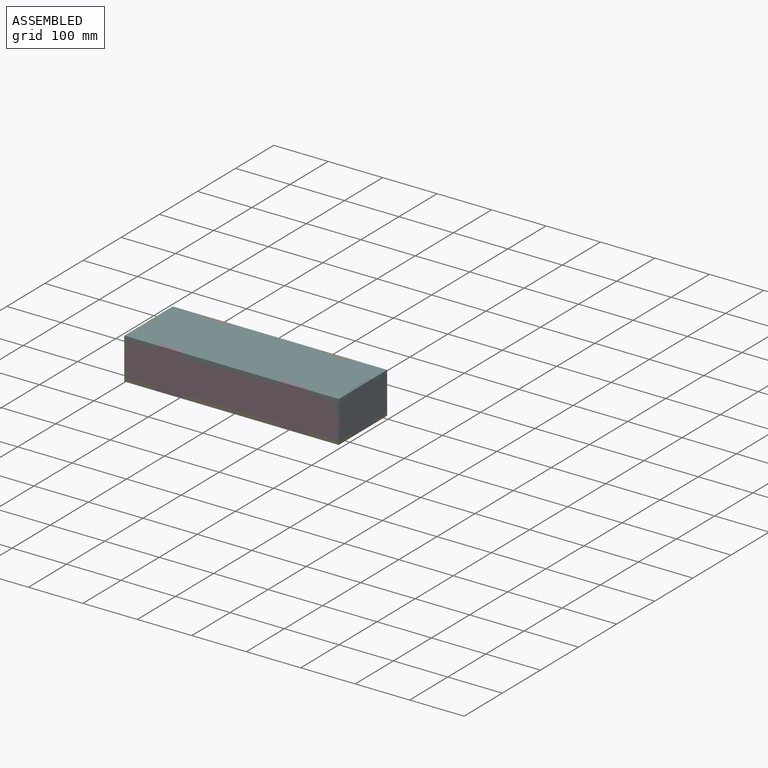
[diagram: assembled view]
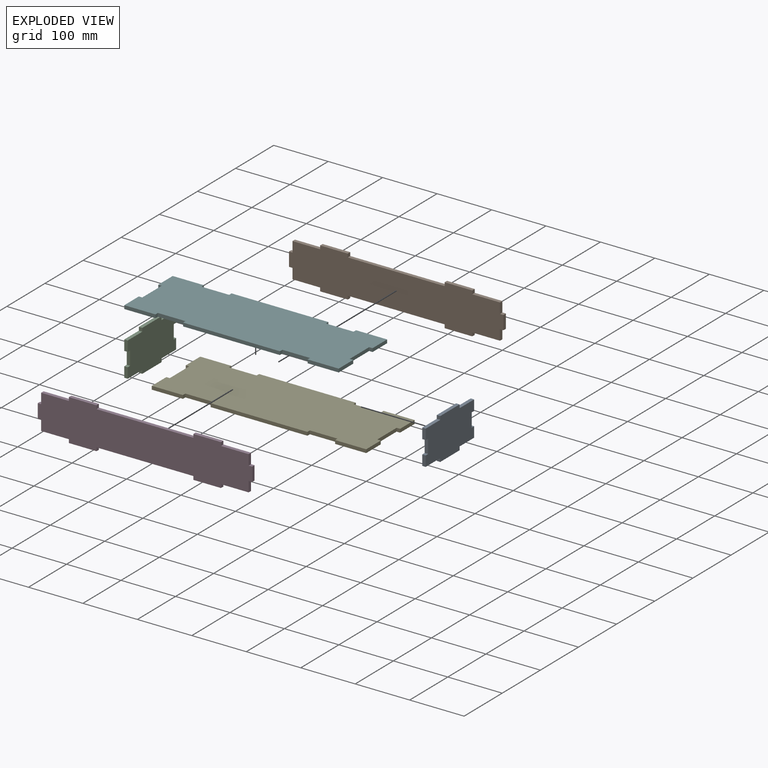
[diagram: exploded view]
GUIDED TOUR — MATED ASSEMBLY (Onshape document 3c04d9b775d5348b2d6336af, AutoMate assembly 3c04d9b775d5348b2d6336af_7605436bc6f01bbf44d855f0_5e979da21f08c909bbdc48e7_default)

This assembly has 6 components, labeled P0..P5 below (a component is one placed occurrence of a part; the same part can appear more than once), held together by 4 mates. A mate is a constraint between two components; its type names the relative motion it leaves free:
  FASTENED — locks the two components together rigidly (no relative motion).
Axis/direction vectors are unit vectors and 'through' points are millimeter coordinates, both in the assembly's world frame.

MATES
  1. FASTENED "Fastened 4": P0 <-> P5, direction (1.000, 0.000, 0.000) through (199.70, 109.34, 80.55) mm
  2. FASTENED "Fastened 1": P2 <-> P5, direction (-1.000, 0.000, 0.000) through (-194.00, 160.14, 80.55) mm
  3. FASTENED "Fastened 2": P1 <-> P5, direction (0.000, 1.000, 0.000) through (91.75, 198.24, 80.55) mm
  4. FASTENED "Fastened 3": P3 <-> P5, direction (0.000, -1.000, 0.000) through (-136.85, 71.24, 80.55) mm

ASSEMBLY ORDER
  1. P2 — the base component [order verified]
  2. P5 [order verified]
  3. P4 [order verified]
  4. P3 [order verified]
  5. P1 [order verified]
  6. P0 [order verified]
Order-tag legend:
  [order verified] — this step's position reverses a verified removal order: the component was checked to insert without passing through the ones already placed.

Of the 6 components, 2 carry the full construction recipe — the FeatureScript program that regenerates the part's solid from scratch; the rest are supplied as boundary geometry only.
Each toured component is shown spotlighted twice — in the assembled view, then in the exploded view, where a leader line traces a displaced component back to its assembled socket (saturated green if recipe-attached, orange if geometry-only; every other component desaturated gray) — followed by its recipe or geometry summary and the mates that hold it.
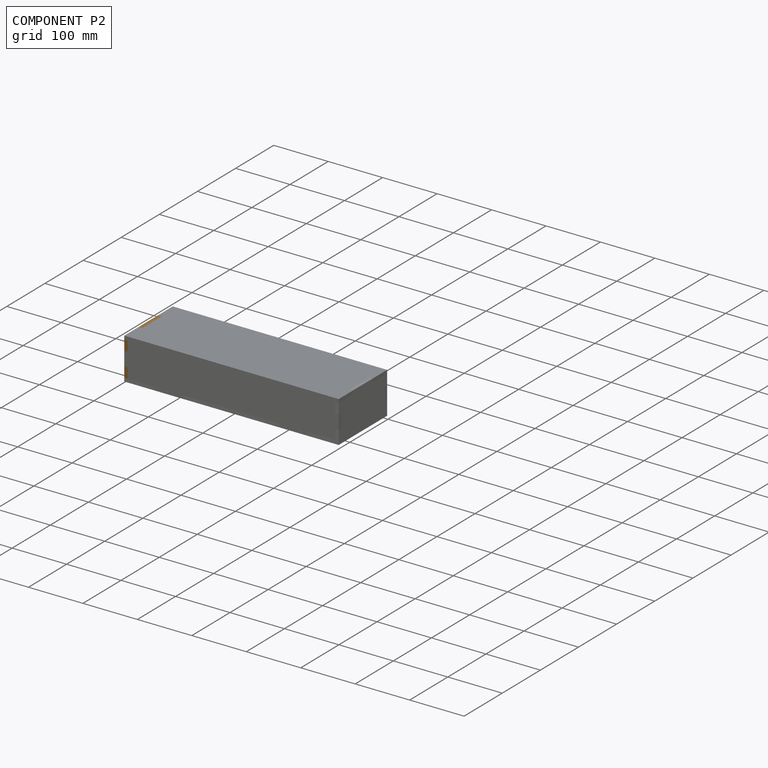
[diagram: component P2 — assembled]
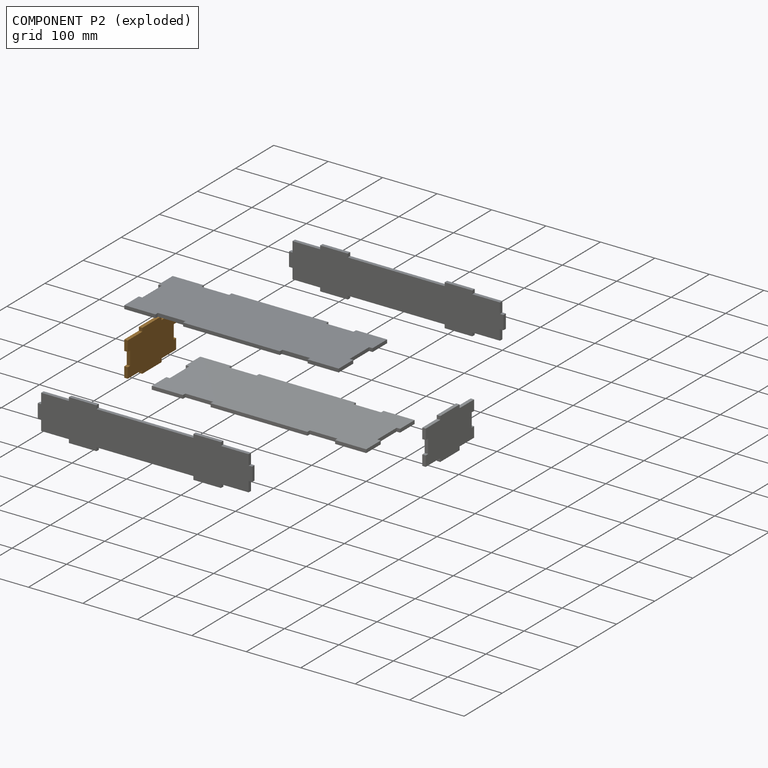
[diagram: component P2 — exploded]
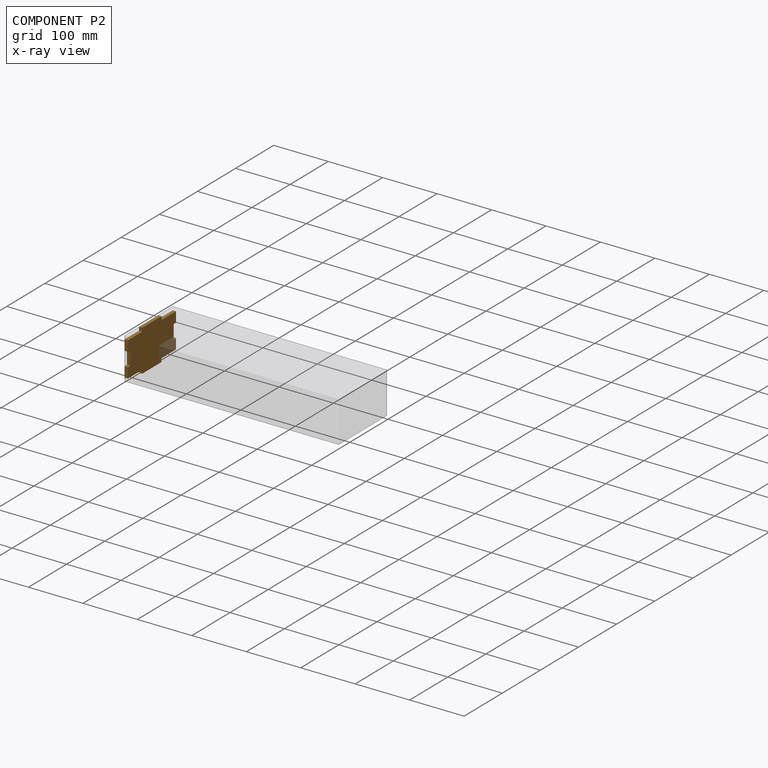
[diagram: component P2 — x-ray view]
COMPONENT P2 — geometry summary (no construction recipe available for this part):
  bounding box: 127.0 x 76.2 x 6.4 mm
  B-rep topology: 1 solid, 22 faces, 120 edges
  volume: 53258 mm^3 (87% of its bounding box)
  symmetry: 2-fold rotationally symmetric about the x axis; 2-fold rotationally symmetric about the y axis; 2-fold rotationally symmetric about the z axis; mirror-symmetric across its x mid-plane, y mid-plane, z mid-plane
Held by: FASTENED mate "Fastened 1" to P5.
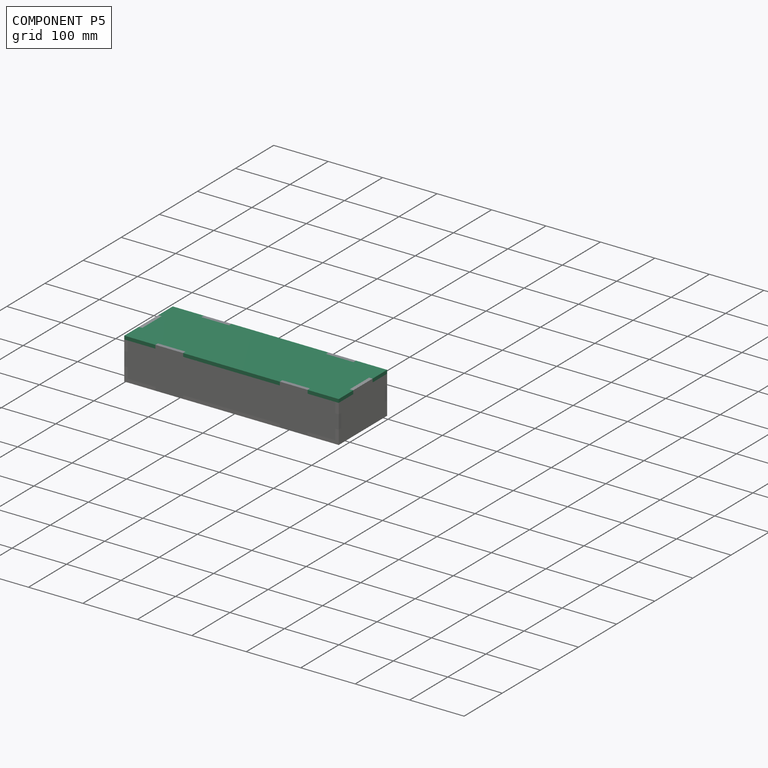
[diagram: component P5 — assembled]
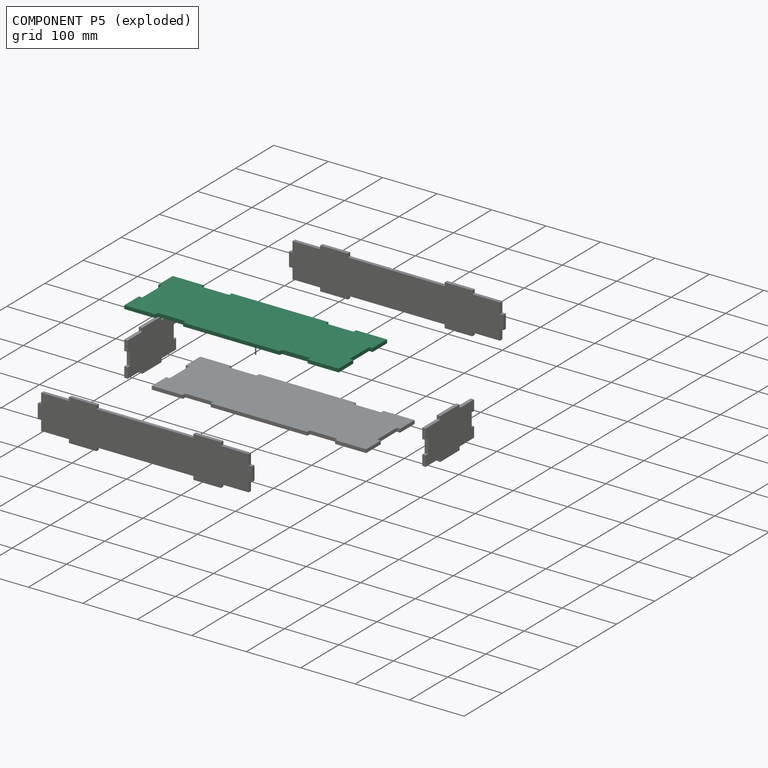
[diagram: component P5 — exploded]
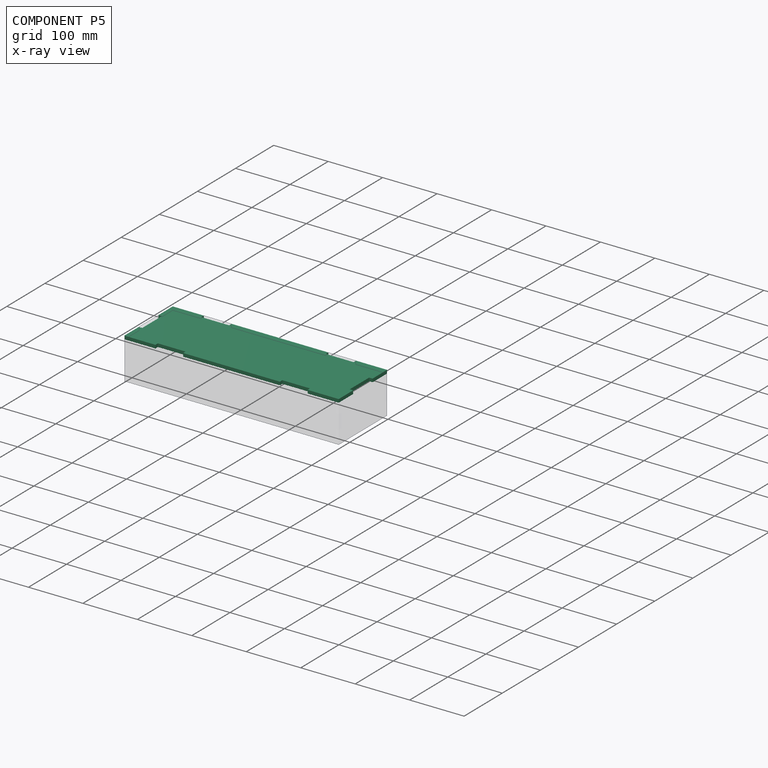
[diagram: component P5 — x-ray view]
COMPONENT P5 — same part as P4 (CADFS 00643480); its construction recipe is shown at P4.
Held by: FASTENED mate "Fastened 4" to P0; FASTENED mate "Fastened 1" to P2; FASTENED mate "Fastened 2" to P1; FASTENED mate "Fastened 3" to P3.
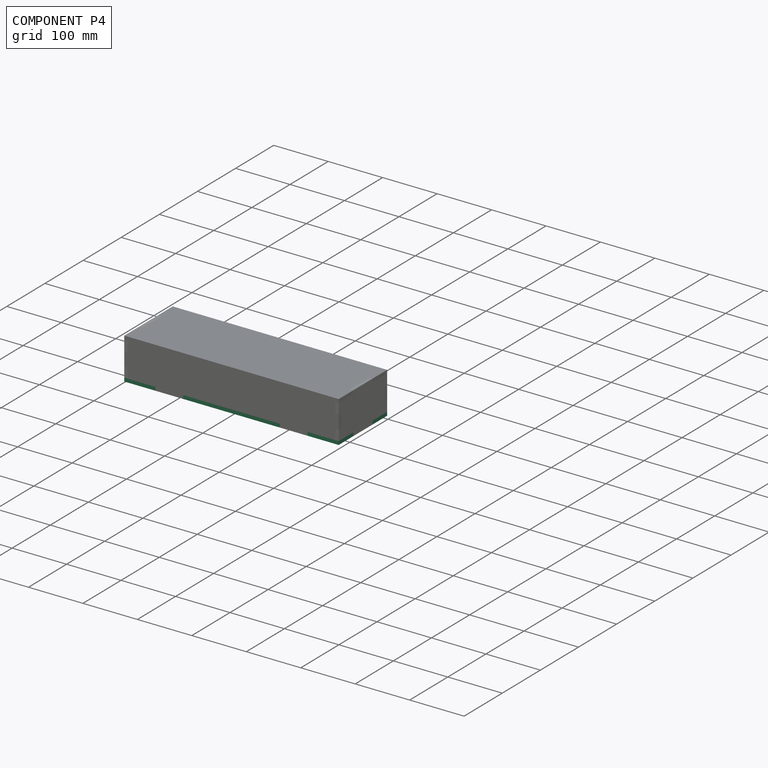
[diagram: component P4 — assembled]
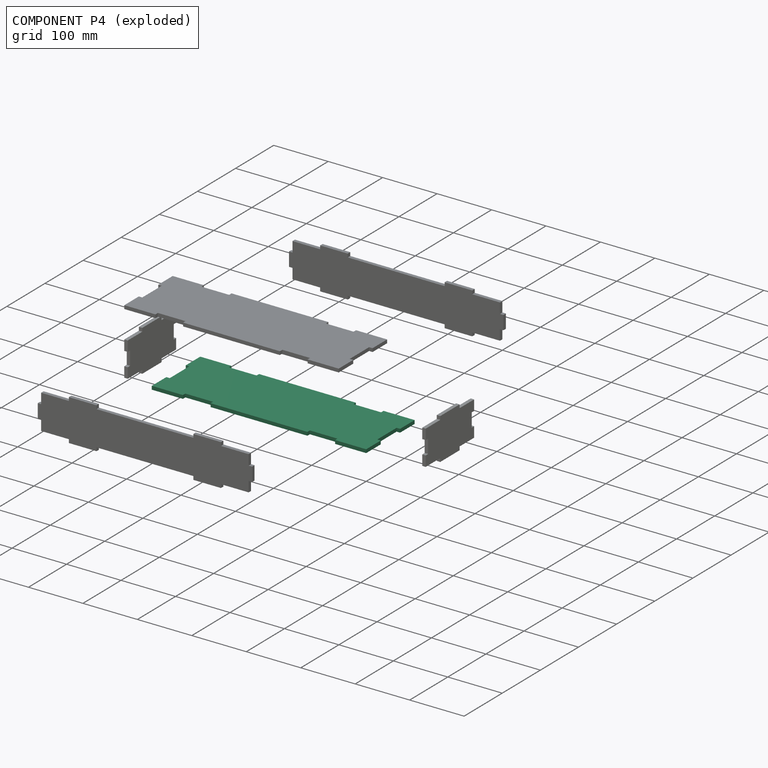
[diagram: component P4 — exploded]
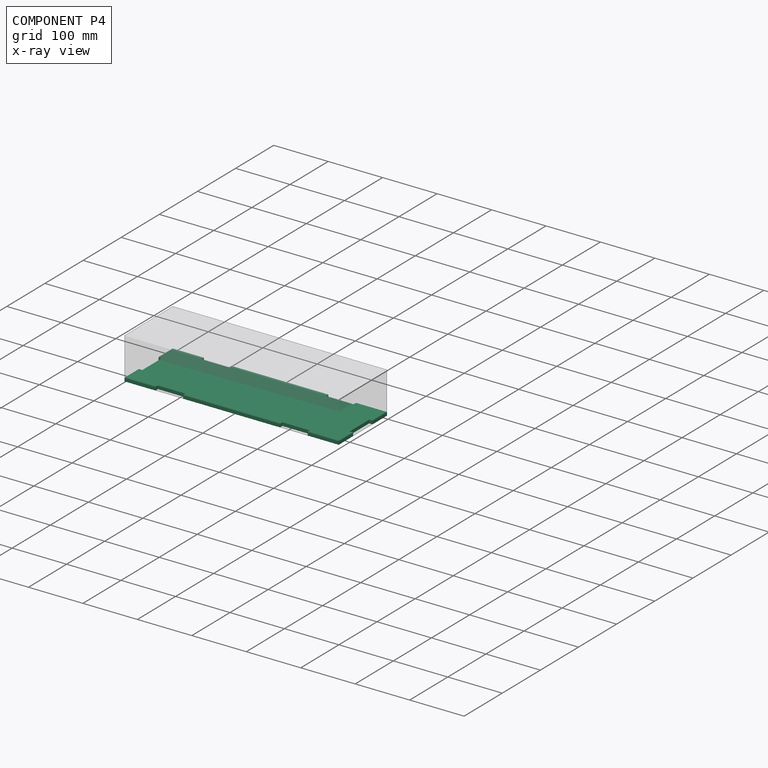
[diagram: component P4 — x-ray view]
COMPONENT P4 — recipe-attached (CADFS 00643480, mesh-verified: the recipe's output STEP matches this component's geometry to below the mesh-comparison resolution (tessellation chordal tolerance ~0.621 mm)).
Held by: no mates (free).
Construction recipe (FeatureScript — the CAD program that rebuilds this solid; sketch coordinates are in the units given by the * unit suffixes, e.g. mm):

FeatureScript 1511;
import(path : "onshape/std/geometry.fs", version : "1511.0");
import(path : "onshape/std/common.fs", version : "1511.0");
const mm = millimeter;
const VERTEX = EntityType.VERTEX;
const EDGE = EntityType.EDGE;
const FACE = EntityType.FACE;
const BODY = EntityType.BODY;
function v(x, y){return vector(x, y);}
function OD(order){return orderDisambiguation(order);}
function OSD(set){return originalSetDisambiguation(set);}
function TD(topology){return topologyDisambiguation(topology);}
function TDD(query){return trueDependencyDisambiguation(query);}
function sQuery(a, b, c) {return sketchEntityQuery(a, b, c);}

annotation { "Feature Type Name" : "Feature", "Feature Type Description" : "" }
export const myFeature = defineFeature(function(context is Context, id is Id, definition is map)
    precondition{}
    {
        {
            var Q0;
            Q0=qCreatedBy(makeId("Top.planeOp"),FACE);
            var sketch = newSketch(context, id + "F0", { "sketchPlane" : qUnion([Q0])});
            skLineSegment(sketch, "E0.bottom", {"start": v(-176.11, 62.4) * mm, "end": v(204.89, 62.4) * mm});
            skLineSegment(sketch, "E0.top", {"start": v(-176.11, -64.6) * mm, "end": v(204.89, -64.6) * mm});
            skLineSegment(sketch, "E0.left", {"start": v(-176.11, 62.4) * mm, "end": v(-176.11, -64.6) * mm});
            skLineSegment(sketch, "E0.right", {"start": v(204.89, 62.4) * mm, "end": v(204.89, -64.6) * mm});
            skLineSegment(sketch, "E1.bottom", {"start": v(-125.31, 62.4) * mm, "end": v(-74.51, 62.4) * mm});
            skLineSegment(sketch, "E1.top", {"start": v(-125.31, 56.05) * mm, "end": v(-74.51, 56.05) * mm});
            skLineSegment(sketch, "E1.left", {"start": v(-125.31, 62.4) * mm, "end": v(-125.31, 56.05) * mm});
            skLineSegment(sketch, "E1.right", {"start": v(-74.51, 62.4) * mm, "end": v(-74.51, 56.05) * mm});
            skLineSegment(sketch, "E2.bottom", {"start": v(103.29, 62.4) * mm, "end": v(154.09, 62.4) * mm});
            skLineSegment(sketch, "E2.top", {"start": v(103.29, 56.05) * mm, "end": v(154.09, 56.05) * mm});
            skLineSegment(sketch, "E2.left", {"start": v(103.29, 62.4) * mm, "end": v(103.29, 56.05) * mm});
            skLineSegment(sketch, "E2.right", {"start": v(154.09, 62.4) * mm, "end": v(154.09, 56.05) * mm});
            skLineSegment(sketch, "E3.bottom", {"start": v(-125.31, -64.6) * mm, "end": v(-74.51, -64.6) * mm});
            skLineSegment(sketch, "E3.top", {"start": v(-125.31, -58.25) * mm, "end": v(-74.51, -58.25) * mm});
            skLineSegment(sketch, "E3.left", {"start": v(-125.31, -64.6) * mm, "end": v(-125.31, -58.25) * mm});
            skLineSegment(sketch, "E3.right", {"start": v(-74.51, -64.6) * mm, "end": v(-74.51, -58.25) * mm});
            skLineSegment(sketch, "E4.bottom", {"start": v(103.29, -64.6) * mm, "end": v(154.09, -64.6) * mm});
            skLineSegment(sketch, "E4.top", {"start": v(103.29, -58.25) * mm, "end": v(154.09, -58.25) * mm});
            skLineSegment(sketch, "E4.left", {"start": v(103.29, -64.6) * mm, "end": v(103.29, -58.25) * mm});
            skLineSegment(sketch, "E4.right", {"start": v(154.09, -64.6) * mm, "end": v(154.09, -58.25) * mm});
            skLineSegment(sketch, "E5.bottom", {"start": v(204.89, 62.4) * mm, "end": v(211.24, 62.4) * mm});
            skLineSegment(sketch, "E5.top", {"start": v(204.89, 24.3) * mm, "end": v(211.24, 24.3) * mm});
            skLineSegment(sketch, "E5.left", {"start": v(204.89, 62.4) * mm, "end": v(204.89, 24.3) * mm});
            skLineSegment(sketch, "E5.right", {"start": v(211.24, 62.4) * mm, "end": v(211.24, 24.3) * mm});
            skLineSegment(sketch, "E6.bottom", {"start": v(204.89, -64.6) * mm, "end": v(211.24, -64.6) * mm});
            skLineSegment(sketch, "E6.top", {"start": v(204.89, -26.5) * mm, "end": v(211.24, -26.5) * mm});
            skLineSegment(sketch, "E6.left", {"start": v(204.89, -64.6) * mm, "end": v(204.89, -26.5) * mm});
            skLineSegment(sketch, "E6.right", {"start": v(211.24, -64.6) * mm, "end": v(211.24, -26.5) * mm});
            skLineSegment(sketch, "E7.bottom", {"start": v(-176.11, 62.4) * mm, "end": v(-182.46, 62.4) * mm});
            skLineSegment(sketch, "E7.top", {"start": v(-176.11, 24.3) * mm, "end": v(-182.46, 24.3) * mm});
            skLineSegment(sketch, "E7.left", {"start": v(-176.11, 62.4) * mm, "end": v(-176.11, 24.3) * mm});
            skLineSegment(sketch, "E7.right", {"start": v(-182.46, 62.4) * mm, "end": v(-182.46, 24.3) * mm});
            skLineSegment(sketch, "E8.bottom", {"start": v(-176.11, -64.6) * mm, "end": v(-182.46, -64.6) * mm});
            skLineSegment(sketch, "E8.top", {"start": v(-176.11, -26.5) * mm, "end": v(-182.46, -26.5) * mm});
            skLineSegment(sketch, "E8.left", {"start": v(-176.11, -64.6) * mm, "end": v(-176.11, -26.5) * mm});
            skLineSegment(sketch, "E8.right", {"start": v(-182.46, -64.6) * mm, "end": v(-182.46, -26.5) * mm});
            skSolve(sketch);
        }
        {
            var Q0;
            Q0=makeQuery(id+"F0.imprint","IMPRINT",FACE,{"disambiguationData":[TD([[makeQuery(id+"F0.imprint","IMPRINT",EDGE,{"derivedFrom":sQuery(id+"F0.wireOp",EDGE,"E0.bottom")}),-1.0]])]});
            var Q1;
            Q1=makeQuery(id+"F0.imprint","IMPRINT",FACE,{"disambiguationData":[TD([[makeQuery(id+"F0.imprint","IMPRINT",EDGE,{"derivedFrom":sQuery(id+"F0.wireOp",EDGE,"E7.bottom")}),1.0]])]});
            var Q2;
            Q2=makeQuery(id+"F0.imprint","IMPRINT",FACE,{"disambiguationData":[TD([[makeQuery(id+"F0.imprint","IMPRINT",EDGE,{"derivedFrom":sQuery(id+"F0.wireOp",EDGE,"E8.bottom")}),-1.0]])]});
            var Q3;
            Q3=makeQuery(id+"F0.imprint","IMPRINT",FACE,{"disambiguationData":[TD([[makeQuery(id+"F0.imprint","IMPRINT",EDGE,{"derivedFrom":sQuery(id+"F0.wireOp",EDGE,"E5.bottom")}),-1.0]])]});
            var Q4;
            Q4=makeQuery(id+"F0.imprint","IMPRINT",FACE,{"disambiguationData":[TD([[makeQuery(id+"F0.imprint","IMPRINT",EDGE,{"derivedFrom":sQuery(id+"F0.wireOp",EDGE,"E6.bottom")}),1.0]])]});
            extrude(context, id + "F1", {"entities" : qUnion([Q0, Q1, Q2, Q3, Q4]), "depth" : 6.35 * mm, "offsetDistance" : 25.4 * mm});
        }
    });
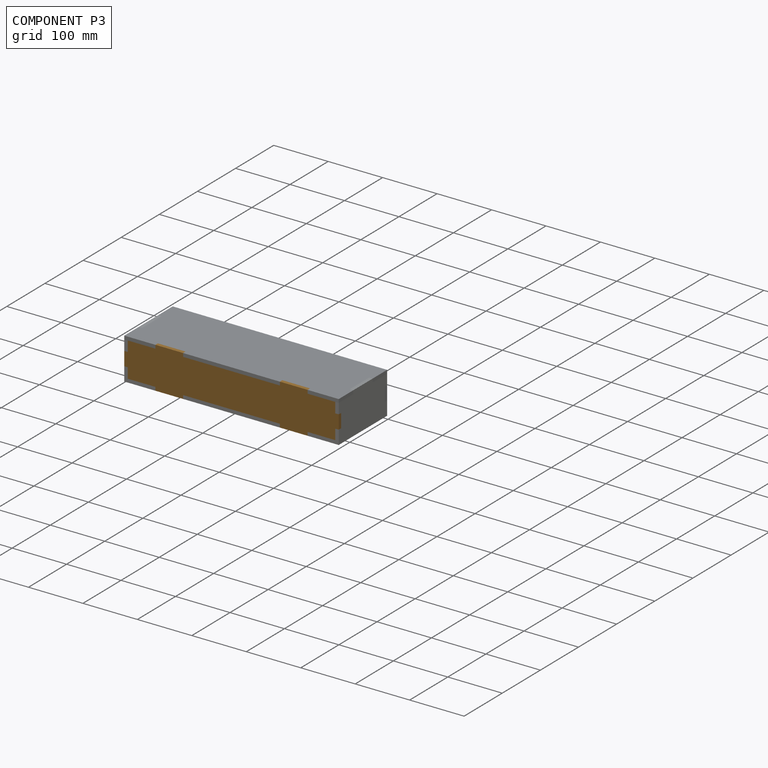
[diagram: component P3 — assembled]
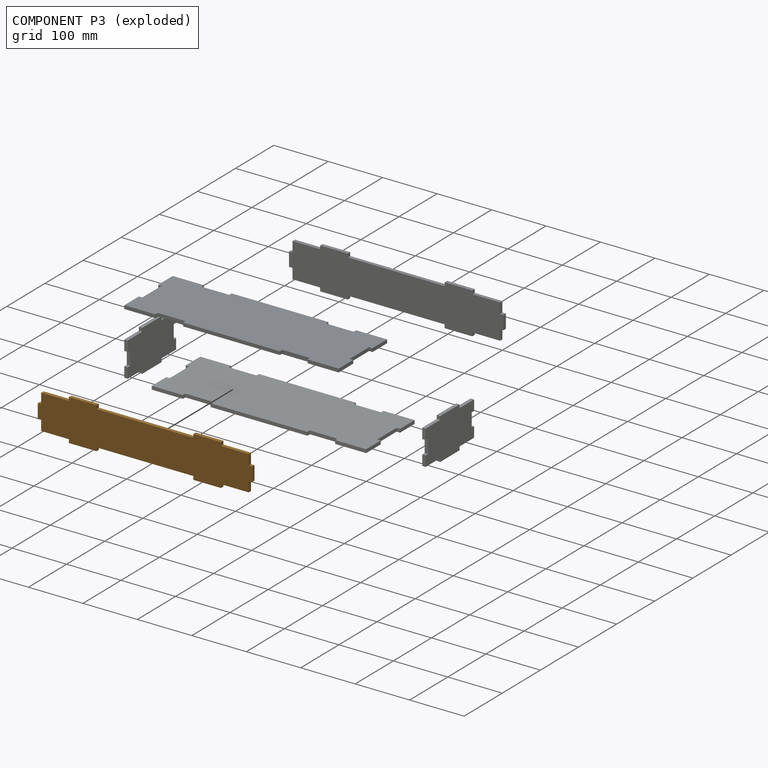
[diagram: component P3 — exploded]
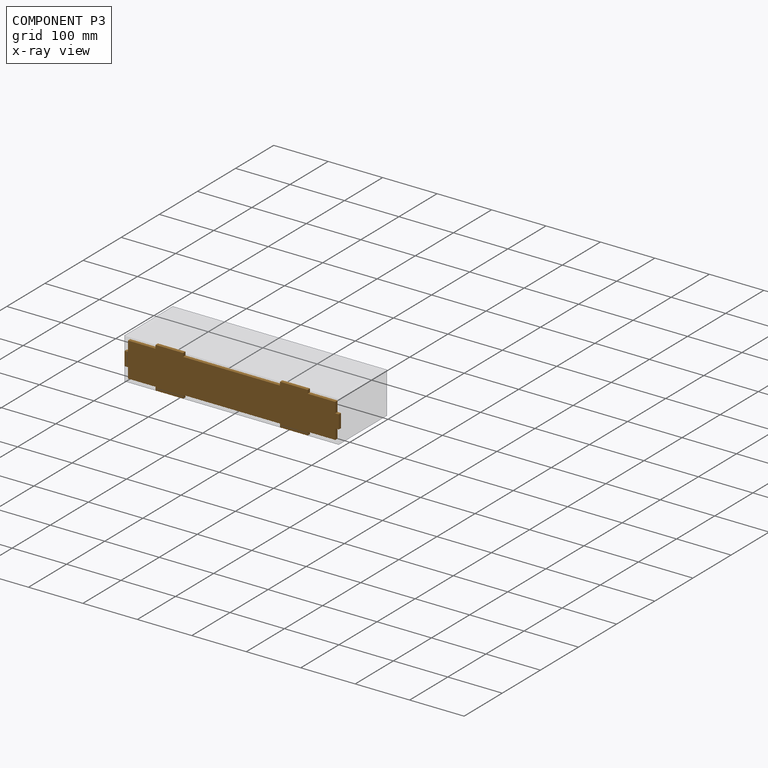
[diagram: component P3 — x-ray view]
COMPONENT P3 — geometry summary (no construction recipe available for this part):
  bounding box: 393.7 x 76.2 x 6.4 mm
  B-rep topology: 1 solid, 30 faces, 168 edges
  volume: 163871 mm^3 (86% of its bounding box)
  symmetry: 2-fold rotationally symmetric about the x axis; 2-fold rotationally symmetric about the y axis; 2-fold rotationally symmetric about the z axis; mirror-symmetric across its x mid-plane, y mid-plane, z mid-plane
Held by: FASTENED mate "Fastened 3" to P5.
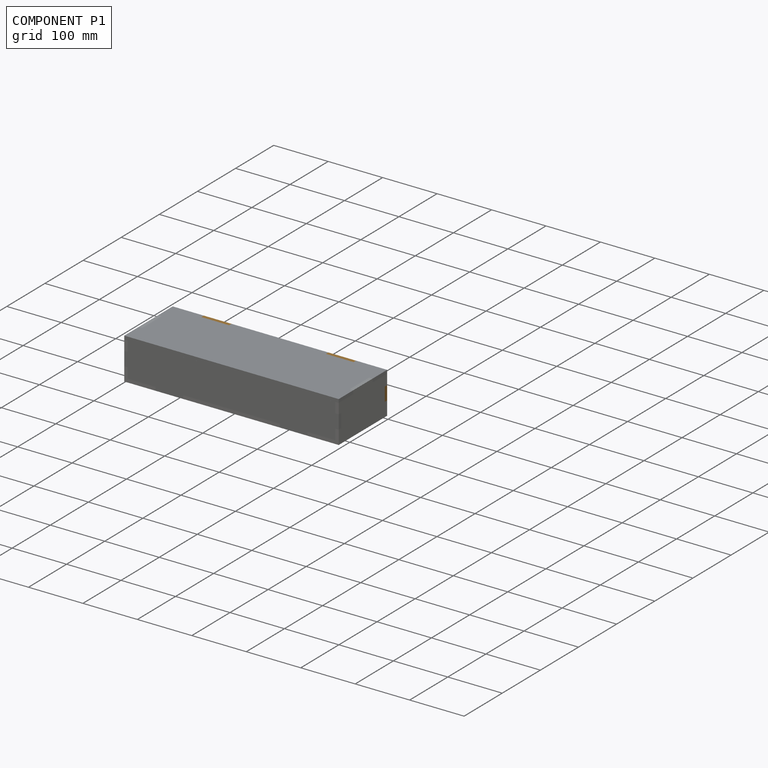
[diagram: component P1 — assembled]
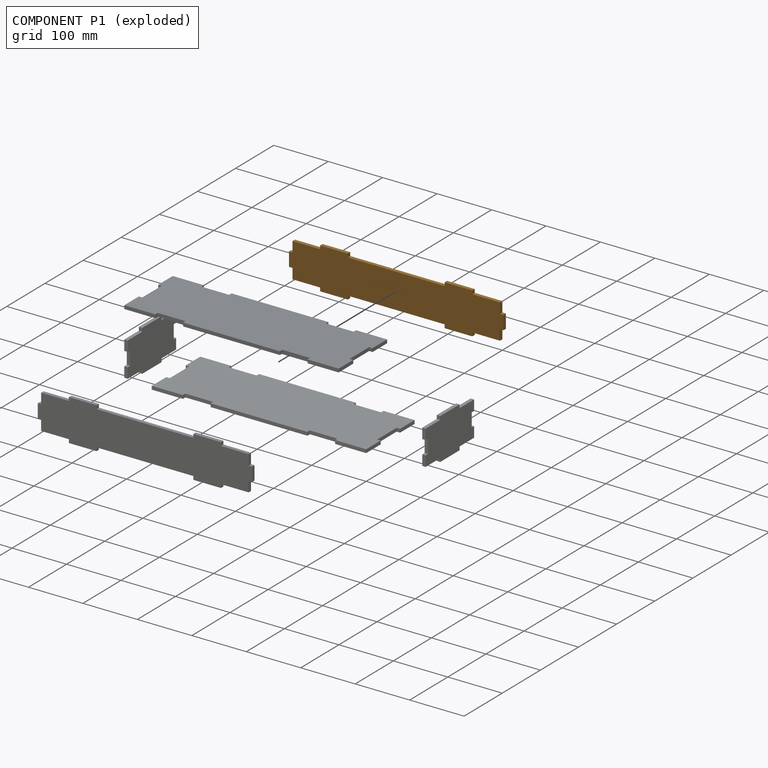
[diagram: component P1 — exploded]
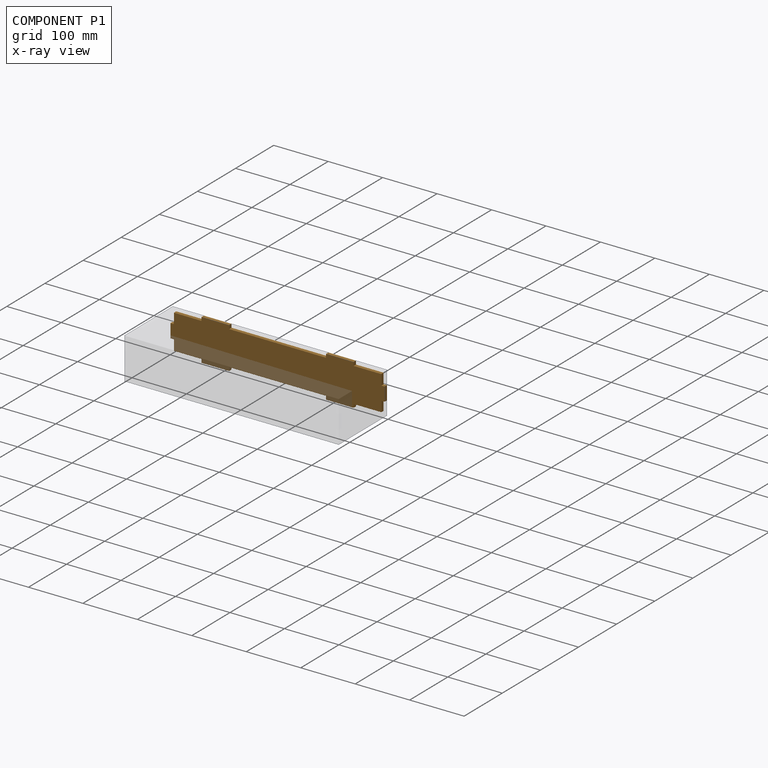
[diagram: component P1 — x-ray view]
COMPONENT P1 — geometry summary (no construction recipe available for this part):
  bounding box: 393.7 x 76.2 x 6.4 mm
  B-rep topology: 1 solid, 30 faces, 168 edges
  volume: 163871 mm^3 (86% of its bounding box)
  symmetry: 2-fold rotationally symmetric about the x axis; 2-fold rotationally symmetric about the y axis; 2-fold rotationally symmetric about the z axis; mirror-symmetric across its x mid-plane, y mid-plane, z mid-plane
Held by: FASTENED mate "Fastened 2" to P5.
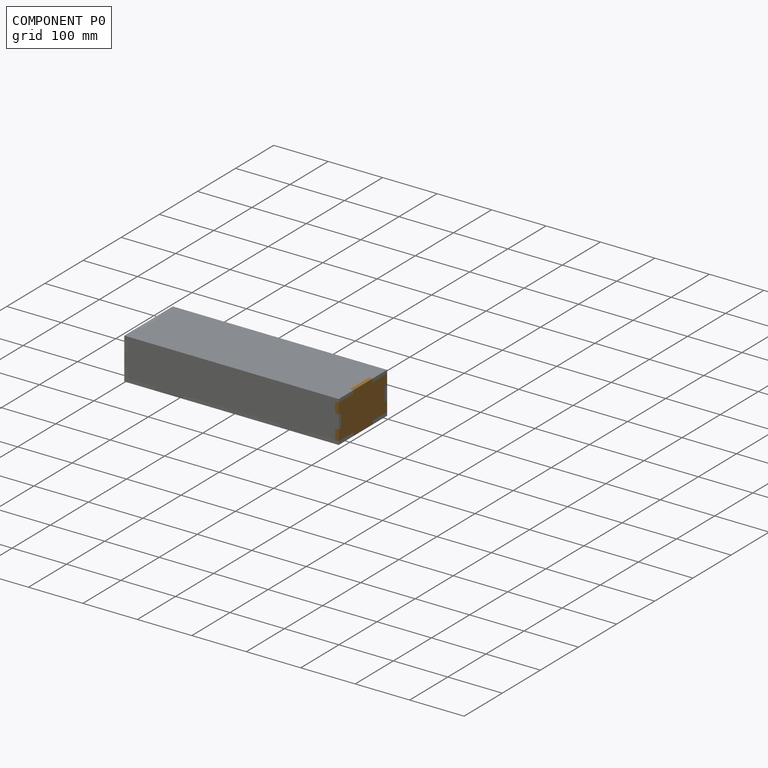
[diagram: component P0 — assembled]
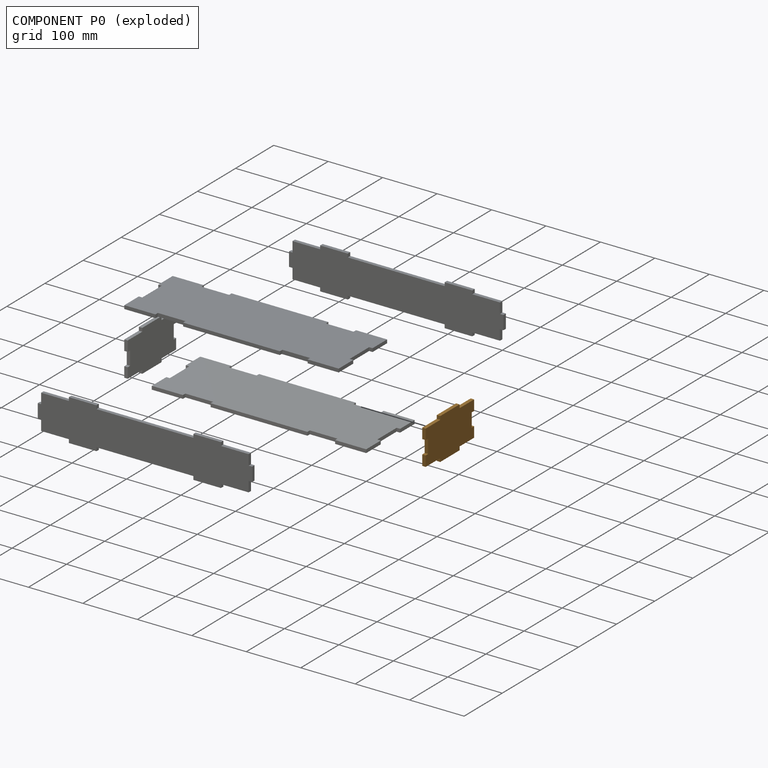
[diagram: component P0 — exploded]
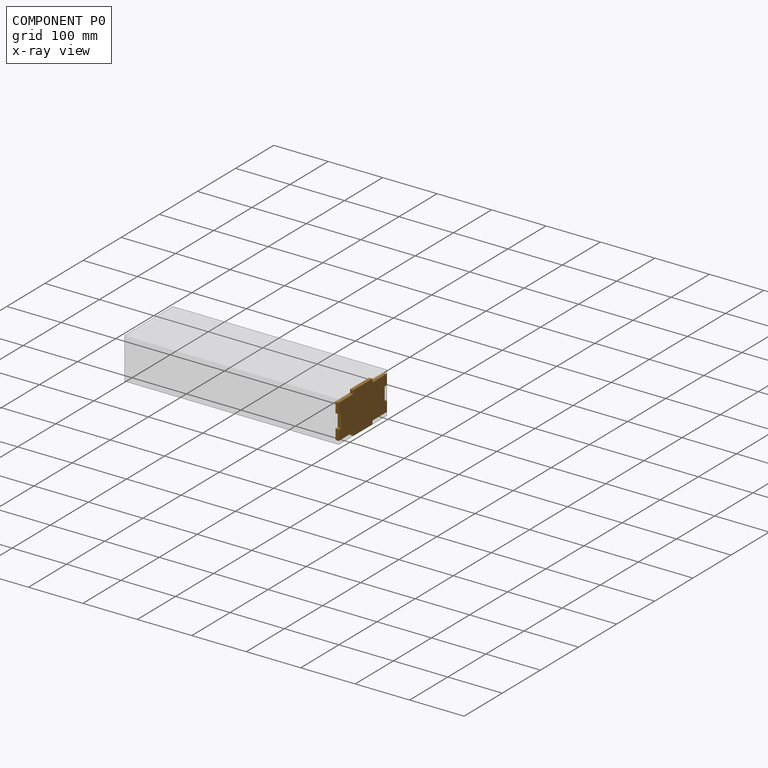
[diagram: component P0 — x-ray view]
COMPONENT P0 — geometry summary (no construction recipe available for this part):
  bounding box: 127.0 x 76.2 x 6.4 mm
  B-rep topology: 1 solid, 22 faces, 120 edges
  volume: 53258 mm^3 (87% of its bounding box)
  symmetry: 2-fold rotationally symmetric about the x axis; 2-fold rotationally symmetric about the y axis; 2-fold rotationally symmetric about the z axis; mirror-symmetric across its x mid-plane, y mid-plane, z mid-plane
Held by: FASTENED mate "Fastened 4" to P5.
PROVENANCE & LICENSES
Assembly (occurrences, transforms, mates, per-part STEP geometry): AutoMate dataset, Zenodo record 7776208, CC0.
Construction recipes: CADFS (HuggingFace VladPyatov/CADFS, CC-BY-4.0, layered over the ABC dataset), FeatureScript reconstruction programs keyed by ABC model id.
Join: ABC meta listings map ABC model id -> Onshape documentId; within a shared document, parts are matched by geometric signature (bounding-box dims + volume at 0.1% relative tolerance, exact B-rep face/solid counts).
Verification: 2 of this assembly's 6 components carry a recipe attachment, and every attachment is mesh-verified: the CADFS STEP and the AutoMate member STEP were compared as meshes in their shared local frame (symmetric sampled-point-to-mesh distance); worst across the 2 attachments: below the mesh-comparison resolution (tessellation chordal tolerance ~0.621 mm) on a 414 mm part.
Renders: orthographic iso camera (az 35 / el 25); the floor grid conveys scale (grid pitch printed in each image; no ruler). In the exploded view each component is displaced by its stored offset vector: the offsets alone carry the explosion direction (mate normal/axis signs are not orientation cues and do not encode it), and separation distances are assigned per mate-chain, not proportionally to assembly-order depth.
